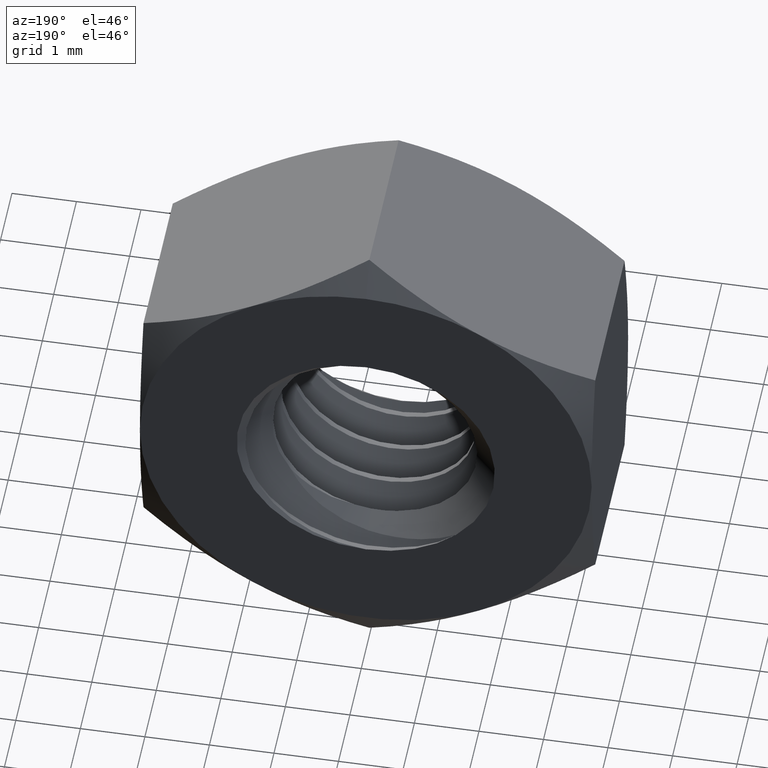
[diagram: clean part render]
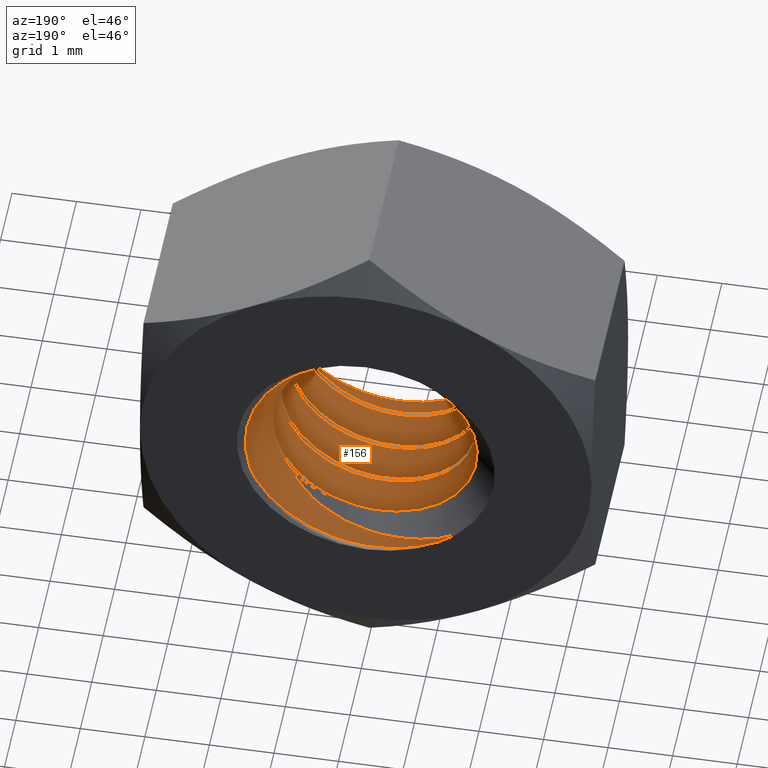
[diagram: same view with one face highlighted and labeled with its STEP entity id]
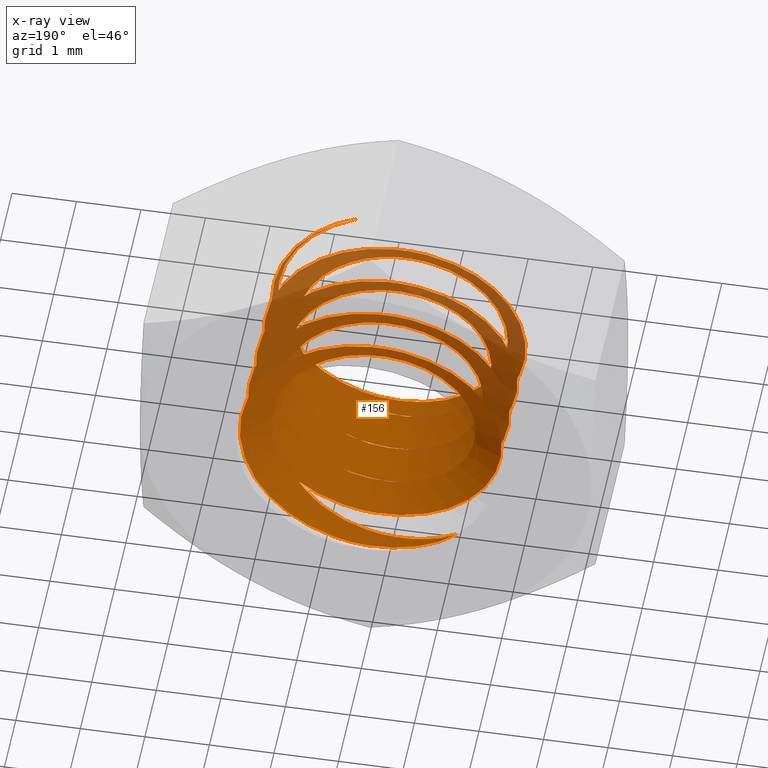
[diagram: x-ray of the same camera — body ghosted, the highlighted face saturated]
A machine part, auxiliary view. The second image highlights one B-rep face of the part: STEP entity #156.
The next image is the same camera in x-ray: the body ghosted, the highlighted face saturated — about 30% of this face is hidden behind the body in this view.
In plain terms, the highlighted face is a freeform B-spline surface patch.
Its self-contained STEP definition (entity closure, byte-faithful):
#13 = CARTESIAN_POINT ( 'NONE',  ( -1.732050807568876700, 0.3458333333333316600, 1.000000000000000900 ) ) ;
#15 = CARTESIAN_POINT ( 'NONE',  ( 2.449293598294706400E-016, 0.4624999999999983000, 2.000000000000000000 ) ) ;
#22 = EDGE_CURVE ( 'NONE', #1861, #1900, #547, .T. ) ;
#28 = CARTESIAN_POINT ( 'NONE',  ( -1.732050807568878100, -0.4708333333333348200, -0.9999999999999985600 ) ) ;
#33 = CARTESIAN_POINT ( 'NONE',  ( 2.309401076758502900, 0.6374999999999984000, -1.414100318299875600E-016 ) ) ;
#34 = CARTESIAN_POINT ( 'NONE',  ( 1.732050807568877400, 1.279166666666665000, 0.9999999999999995600 ) ) ;
#43 = CARTESIAN_POINT ( 'NONE',  ( 1.154700538379252600, 1.220833333333331700, 1.999999999999999600 ) ) ;
#51 = CARTESIAN_POINT ( 'NONE',  ( -0.8456489047310611400, -1.367092041338759300, -1.567173218970678000 ) ) ;
#63 = CARTESIAN_POINT ( 'NONE',  ( -1.732050807568876700, 1.045833333333331800, 1.000000000000000900 ) ) ;
#67 = CARTESIAN_POINT ( 'NONE',  ( -1.471311687071638700, -1.331070582185945200, -0.9383005253973739600 ) ) ;
#73 = CARTESIAN_POINT ( 'NONE',  ( -1.610967889283662500, -1.270734939520265600, 0.4566371365956172200 ) ) ;
#78 = CARTESIAN_POINT ( 'NONE',  ( 1.154700538379252100, 1.220833333333331700, 1.999999999999999800 ) ) ;
#81 = CARTESIAN_POINT ( 'NONE',  ( -0.4358873428878464200, -1.385207578127642500, -1.734720145296925600 ) ) ;
#84 = CARTESIAN_POINT ( 'NONE',  ( -1.784401076758501200, 0.7249999999999986500, 3.277891600571083500E-016 ) ) ;
#86 = VERTEX_POINT ( 'NONE', #153 ) ;
#87 = B_SPLINE_CURVE_WITH_KNOTS ( 'NONE', 3,
 ( #223, #1762, #388, #81, #1305, #51, #974, #1297, #67, #1151, #835, #366, #214, #1619, #1935, #1135, #73, #1446, #382, #1599, #1000, #1159, #1912, #828, #1311, #1165 ),
 .UNSPECIFIED., .F., .F.,
 ( 4, 2, 2, 2, 2, 2, 2, 2, 2, 2, 2, 2, 4 ),
 ( 0.005312518444250118000, 0.005644026906692766800, 0.005975535369135415500, 0.006638552294020712100, 0.007301569218906008700, 0.007633077681348658300, 0.007964586143791306200, 0.008296094606233955800, 0.008627603068676603600, 0.009290619993561901100, 0.009622128456004550700, 0.009953636918447198600, 0.01061665384333249600 ),
 .UNSPECIFIED. ) ;
#104 = CARTESIAN_POINT ( 'NONE',  ( 0.8922005383792505100, 1.191666666666665300, -1.545336663013168200 ) ) ;
#110 = CARTESIAN_POINT ( 'NONE',  ( -1.732050807568878100, 0.2291666666666648500, -0.9999999999999985600 ) ) ;
#114 = CARTESIAN_POINT ( 'NONE',  ( 2.449293598294706400E-016, -0.2375000000000016000, 2.000000000000000000 ) ) ;
#122 = CARTESIAN_POINT ( 'NONE',  ( 1.154700538379252100, -0.1791666666666681700, 1.999999999999999800 ) ) ;
#125 = CARTESIAN_POINT ( 'NONE',  ( 0.8922005383792505100, 1.891666666666665300, -1.545336663013168200 ) ) ;
#134 = CARTESIAN_POINT ( 'NONE',  ( 0.8922005383792510600, 0.2583333333333320300, 1.545336663013167700 ) ) ;
#140 = CARTESIAN_POINT ( 'NONE',  ( -1.338300807568875600, -0.6166666666666681400, 0.7726683315065847600 ) ) ;
#142 = CARTESIAN_POINT ( 'NONE',  ( 0.0000000000000000000, -0.5875000000000016900, -2.000000000000000000 ) ) ;
#147 = CARTESIAN_POINT ( 'NONE',  ( 0.0000000000000000000, -0.8500000000000013100, -1.545336663013168200 ) ) ;
#150 = CARTESIAN_POINT ( 'NONE',  ( 1.338300807568875800, -0.9666666666666682300, -0.7726683315065843200 ) ) ;
#153 = CARTESIAN_POINT ( 'NONE',  ( 2.449293598294706400E-016, -0.9375000000000016700, 2.000000000000000000 ) ) ;
#156 = ADVANCED_FACE ( 'NONE', ( #477 ), #1292, .T. ) ;
#157 = CARTESIAN_POINT ( 'NONE',  ( 1.762171996019109300, -1.486115103350378300, -0.6814345904909149300 ) ) ;
#160 =( BOUNDED_CURVE ( )  B_SPLINE_CURVE ( 2, ( #339, #481, #492 ),
 .UNSPECIFIED., .F., .F. ) 
 B_SPLINE_CURVE_WITH_KNOTS ( ( 3, 3 ),
 ( 0.7619496857609308100, 0.7824223608352338700 ),
 .UNSPECIFIED. ) 
 CURVE ( )  GEOMETRIC_REPRESENTATION_ITEM ( )  RATIONAL_B_SPLINE_CURVE ( ( 1.000000000000000000, 0.9012585384448430500, 0.9480652107218832100 ) ) 
 REPRESENTATION_ITEM ( '' )  );
#165 = CARTESIAN_POINT ( 'NONE',  ( 1.923875890384484600, -1.511375892679774200, -0.03852936082774155400 ) ) ;
#172 = CARTESIAN_POINT ( 'NONE',  ( 2.702824631663522100E-011, -1.401882938683599100, -1.801882938683598400 ) ) ;
#195 =( BOUNDED_CURVE ( )  B_SPLINE_CURVE ( 2, ( #647, #1723, #1887, #955, #1903, #806, #1122 ),
 .UNSPECIFIED., .F., .T. ) 
 B_SPLINE_CURVE_WITH_KNOTS ( ( 3, 2, 2, 3 ),
 ( 0.5952830190942641800, 0.6230607968720418600, 0.6508385746498196500, 0.6786163524275974400 ),
 .UNSPECIFIED. ) 
 CURVE ( )  GEOMETRIC_REPRESENTATION_ITEM ( )  RATIONAL_B_SPLINE_CURVE ( ( 1.000000000000000000, 0.8660254037844387100, 1.000000000000000000, 0.8660254037844387100, 1.000000000000000000, 0.8660254037844387100, 1.000000000000000000 ) ) 
 REPRESENTATION_ITEM ( '' )  );
#199 = CARTESIAN_POINT ( 'NONE',  ( 1.732050807568877400, -0.1208333333333347600, 0.9999999999999995600 ) ) ;
#208 = CARTESIAN_POINT ( 'NONE',  ( -1.732050807568878100, 0.2291666666666648500, -0.9999999999999985600 ) ) ;
#210 = CARTESIAN_POINT ( 'NONE',  ( -1.154700538379252600, -1.229166666666668300, -1.999999999999999300 ) ) ;
#211 = CARTESIAN_POINT ( 'NONE',  ( 2.309401076758502900, -0.06250000000000179000, -1.414100318299875600E-016 ) ) ;
#214 = CARTESIAN_POINT ( 'NONE',  ( -1.691473631232532700, -1.299647340480681200, -0.1998365539274595800 ) ) ;
#221 = ORIENTED_EDGE ( 'NONE', *, *, #819, .F. ) ;
#223 = CARTESIAN_POINT ( 'NONE',  ( 2.702824631663522100E-011, -1.401882938683599100, -1.801882938683598400 ) ) ;
#226 = CARTESIAN_POINT ( 'NONE',  ( -1.732050807568876700, 0.3458333333333316600, 1.000000000000000900 ) ) ;
#232 = CARTESIAN_POINT ( 'NONE',  ( 2.309401076758502900, 2.037499999999998300, -1.414100318299875800E-016 ) ) ;
#240 = CARTESIAN_POINT ( 'NONE',  ( 0.0000000000000000000, 0.8124999999999983300, -2.000000000000000000 ) ) ;
#249 = CARTESIAN_POINT ( 'NONE',  ( -1.154700538379250600, 1.104166666666665000, 2.000000000000000400 ) ) ;
#256 = CARTESIAN_POINT ( 'NONE',  ( -1.338300807568875600, 0.7833333333333321000, 0.7726683315065847600 ) ) ;
#264 = CARTESIAN_POINT ( 'NONE',  ( -1.154700538379250600, -0.9958333333333351200, 2.000000000000000400 ) ) ;
#269 = CARTESIAN_POINT ( 'NONE',  ( -1.154700538379252800, -1.229166666666668300, -1.999999999999999300 ) ) ;
#275 = CARTESIAN_POINT ( 'NONE',  ( -2.309401076758502900, -1.112500000000001600, 4.242300954899627700E-016 ) ) ;
#277 = ORIENTED_EDGE ( 'NONE', *, *, #1279, .T. ) ;
#281 = CARTESIAN_POINT ( 'NONE',  ( -1.732050807568876700, -0.3541666666666684100, 1.000000000000000900 ) ) ;
#287 = CARTESIAN_POINT ( 'NONE',  ( -0.8922005383792500600, 0.1416666666666653900, 1.545336663013168600 ) ) ;
#292 = CARTESIAN_POINT ( 'NONE',  ( -1.784401076758501200, -0.6750000000000017100, 3.277891600571083500E-016 ) ) ;
#295 = CARTESIAN_POINT ( 'NONE',  ( 1.338300807568876000, -1.083333333333334600, 0.7726683315065837600 ) ) ;
#298 = CARTESIAN_POINT ( 'NONE',  ( -0.8922005383792515100, -0.7916666666666679600, -1.545336663013167700 ) ) ;
#302 =( BOUNDED_CURVE ( )  B_SPLINE_CURVE ( 2, ( #928, #318, #208, #975, #13, #1904, #362 ),
 .UNSPECIFIED., .F., .F. ) 
 B_SPLINE_CURVE_WITH_KNOTS ( ( 3, 2, 2, 3 ),
 ( 0.4286163524275974400, 0.4563941302053752300, 0.4841719079831530200, 0.5119496857609307000 ),
 .UNSPECIFIED. ) 
 CURVE ( )  GEOMETRIC_REPRESENTATION_ITEM ( )  RATIONAL_B_SPLINE_CURVE ( ( 1.000000000000000000, 0.8660254037844387100, 1.000000000000000000, 0.8660254037844387100, 1.000000000000000000, 0.8660254037844387100, 1.000000000000000000 ) ) 
 REPRESENTATION_ITEM ( '' )  );
#308 = CARTESIAN_POINT ( 'NONE',  ( 1.408569341429479300, -1.567110777453623000, 1.391005191545977300 ) ) ;
#313 = CARTESIAN_POINT ( 'NONE',  ( 1.338300807568876000, -1.083333333333334600, 0.7726683315065837600 ) ) ;
#314 = CARTESIAN_POINT ( 'NONE',  ( 1.318377194814434900, -1.458167330964024400, -1.314140348204302600 ) ) ;
#318 = CARTESIAN_POINT ( 'NONE',  ( -1.154700538379252600, 0.1708333333333318400, -1.999999999999999300 ) ) ;
#339 = CARTESIAN_POINT ( 'NONE',  ( 0.0000000000000000000, 1.512499999999998200, -2.000000000000000000 ) ) ;
#341 = CARTESIAN_POINT ( 'NONE',  ( 0.6190967197439939400, -1.151525427696187000, 1.428525889910280200 ) ) ;
#350 = CARTESIAN_POINT ( 'NONE',  ( 0.8347289278728615700, 1.254243339005551200, -1.434012445829154300 ) ) ;
#353 = VERTEX_POINT ( 'NONE', #644 ) ;
#362 = CARTESIAN_POINT ( 'NONE',  ( 2.449293598294706400E-016, 0.4624999999999983000, 2.000000000000000000 ) ) ;
#366 = CARTESIAN_POINT ( 'NONE',  ( -1.679711172895123900, -1.304378727393498100, -0.3094425810259344700 ) ) ;
#368 = CARTESIAN_POINT ( 'NONE',  ( 0.0000000000000000000, -1.287500000000001600, -2.000000000000000000 ) ) ;
#369 = CARTESIAN_POINT ( 'NONE',  ( 2.449293598294706400E-016, -0.9375000000000016700, 2.000000000000000000 ) ) ;
#372 = ORIENTED_EDGE ( 'NONE', *, *, #1180, .T. ) ;
#374 = CARTESIAN_POINT ( 'NONE',  ( 1.240589571770435800, 1.145336663012057800, -0.9214135425893854600 ) ) ;
#379 = CARTESIAN_POINT ( 'NONE',  ( 1.154700538379252100, 1.920833333333331600, 1.999999999999999800 ) ) ;
#382 = CARTESIAN_POINT ( 'NONE',  ( -1.362750607133382100, -1.248575438554325300, 0.9541008930076518800 ) ) ;
#386 = CARTESIAN_POINT ( 'NONE',  ( 1.732050807568877400, 1.279166666666665000, 0.9999999999999995600 ) ) ;
#387 = ORIENTED_EDGE ( 'NONE', *, *, #22, .T. ) ;
#388 = CARTESIAN_POINT ( 'NONE',  ( -0.2195369231801547200, -1.393847214676774000, -1.783809695608997500 ) ) ;
#389 = B_SPLINE_CURVE_WITH_KNOTS ( 'NONE', 3,
 ( #374, #993, #1764, #801, #350, #970, #668, #1899, #642, #1570 ),
 .UNSPECIFIED., .F., .F.,
 ( 4, 2, 2, 2, 4 ),
 ( 0.0000000000000000000, 0.0003971530660516413400, 0.0007943061321032825700, 0.001191459198154923600, 0.001588612264206564700 ),
 .UNSPECIFIED. ) ;
#390 = CARTESIAN_POINT ( 'NONE',  ( 1.784401076758501200, 0.3749999999999986100, -1.092630533523694600E-016 ) ) ;
#392 = CARTESIAN_POINT ( 'NONE',  ( 1.732050807568877400, 0.5791666666666649400, 0.9999999999999995600 ) ) ;
#397 = CARTESIAN_POINT ( 'NONE',  ( 0.0000000000000000000, 2.212499999999998100, -2.000000000000000000 ) ) ;
#405 = CARTESIAN_POINT ( 'NONE',  ( 1.732050807568877200, 2.095833333333331400, -1.000000000000000200 ) ) ;
#412 = CARTESIAN_POINT ( 'NONE',  ( -1.784401076758501200, 0.7249999999999985300, 3.277891600571083500E-016 ) ) ;
#417 = CARTESIAN_POINT ( 'NONE',  ( -1.154700538379250600, -0.2958333333333350600, 2.000000000000000400 ) ) ;
#423 = CARTESIAN_POINT ( 'NONE',  ( 2.309401076758502900, -1.462500000000001700, -1.414100318299875800E-016 ) ) ;
#427 = CARTESIAN_POINT ( 'NONE',  ( 1.154700538379251200, -1.345833333333335200, -2.000000000000000000 ) ) ;
#434 = CARTESIAN_POINT ( 'NONE',  ( 0.8922005383792510600, 1.658333333333331900, 1.545336663013167700 ) ) ;
#439 = CARTESIAN_POINT ( 'NONE',  ( 1.892491597964128500E-016, 0.1999999999999985700, 1.545336663013168200 ) ) ;
#440 = ORIENTED_EDGE ( 'NONE', *, *, #1630, .T. ) ;
#446 = CARTESIAN_POINT ( 'NONE',  ( -1.338300807568876700, -0.03333333333333486600, -0.7726683315065830900 ) ) ;
#448 = CARTESIAN_POINT ( 'NONE',  ( -1.338300807568876700, -0.7333333333333345000, -0.7726683315065830900 ) ) ;
#452 = CARTESIAN_POINT ( 'NONE',  ( 0.8922005383792505100, -1.608333333333334700, -1.545336663013168200 ) ) ;
#461 = CARTESIAN_POINT ( 'NONE',  ( 1.338300807568876000, -0.3833333333333344700, 0.7726683315065837600 ) ) ;
#469 = CARTESIAN_POINT ( 'NONE',  ( 0.1104682635419877200, -1.405809932624737700, -1.805809932622995900 ) ) ;
#473 = CARTESIAN_POINT ( 'NONE',  ( -1.338300807568875600, 0.08333333333333195500, 0.7726683315065847600 ) ) ;
#477 = FACE_OUTER_BOUND ( 'NONE', #637, .T. ) ;
#480 = VERTEX_POINT ( 'NONE', #1751 ) ;
#481 = CARTESIAN_POINT ( 'NONE',  ( -0.8177634621322547000, 1.553811896062104300, -1.999999999999999600 ) ) ;
#482 = CARTESIAN_POINT ( 'NONE',  ( 0.0000000000000000000, 0.8124999999999983300, -2.000000000000000000 ) ) ;
#488 = VERTEX_POINT ( 'NONE', #1744 ) ;
#492 = CARTESIAN_POINT ( 'NONE',  ( -1.401258538444098300, 1.600000000000000100, -1.427050983124818600 ) ) ;
#495 = CARTESIAN_POINT ( 'NONE',  ( 0.0000000000000000000, 0.8124999999999983300, -2.000000000000000000 ) ) ;
#501 = CARTESIAN_POINT ( 'NONE',  ( 2.449293598294706400E-016, 1.162499999999998300, 2.000000000000000000 ) ) ;
#511 = CARTESIAN_POINT ( 'NONE',  ( -1.201564485198708200, 1.566937907896577700, -1.576799531359423200 ) ) ;
#512 = EDGE_CURVE ( 'NONE', #353, #480, #1991, .T. ) ;
#527 = CARTESIAN_POINT ( 'NONE',  ( -2.309401076758502900, 0.2874999999999983100, 4.242300954899627700E-016 ) ) ;
#535 = ORIENTED_EDGE ( 'NONE', *, *, #512, .T. ) ;
#539 = ORIENTED_EDGE ( 'NONE', *, *, #1951, .F. ) ;
#547 =( BOUNDED_CURVE ( )  B_SPLINE_CURVE ( 2, ( #501, #43, #34, #653, #1897, #963, #1283 ),
 .UNSPECIFIED., .F., .F. ) 
 B_SPLINE_CURVE_WITH_KNOTS ( ( 3, 2, 2, 3 ),
 ( 0.6786163524275974400, 0.7063941302053752300, 0.7341719079831530200, 0.7619496857609308100 ),
 .UNSPECIFIED. ) 
 CURVE ( )  GEOMETRIC_REPRESENTATION_ITEM ( )  RATIONAL_B_SPLINE_CURVE ( ( 1.000000000000000000, 0.8660254037844387100, 1.000000000000000000, 0.8660254037844387100, 1.000000000000000000, 0.8660254037844387100, 1.000000000000000000 ) ) 
 REPRESENTATION_ITEM ( '' )  );
#549 = CARTESIAN_POINT ( 'NONE',  ( 1.732050807568877200, 1.395833333333331700, -1.000000000000000200 ) ) ;
#556 = CARTESIAN_POINT ( 'NONE',  ( 2.309401076758502900, 0.6374999999999984000, -1.414100318299875800E-016 ) ) ;
#558 = CARTESIAN_POINT ( 'NONE',  ( 1.338300807568876000, 1.016666666666665300, 0.7726683315065837600 ) ) ;
#561 = CARTESIAN_POINT ( 'NONE',  ( 1.732050807568877400, -0.8208333333333348600, 0.9999999999999995600 ) ) ;
#566 = CARTESIAN_POINT ( 'NONE',  ( 1.338300807568875800, 0.4333333333333320200, -0.7726683315065843200 ) ) ;
#567 = CARTESIAN_POINT ( 'NONE',  ( -1.154700538379252800, -0.5291666666666682300, -1.999999999999999300 ) ) ;
#572 =( BOUNDED_CURVE ( )  B_SPLINE_CURVE ( 2, ( #15, #1416, #957, #33, #1710, #1569, #482 ),
 .UNSPECIFIED., .F., .T. ) 
 B_SPLINE_CURVE_WITH_KNOTS ( ( 3, 2, 2, 3 ),
 ( 0.5119496857609307000, 0.5397274635387086000, 0.5675052413164862800, 0.5952830190942641800 ),
 .UNSPECIFIED. ) 
 CURVE ( )  GEOMETRIC_REPRESENTATION_ITEM ( )  RATIONAL_B_SPLINE_CURVE ( ( 1.000000000000000000, 0.8660254037844387100, 1.000000000000000000, 0.8660254037844387100, 1.000000000000000000, 0.8660254037844387100, 1.000000000000000000 ) ) 
 REPRESENTATION_ITEM ( '' )  );
#575 = CARTESIAN_POINT ( 'NONE',  ( 1.732050807568877400, -0.1208333333333347600, 0.9999999999999995600 ) ) ;
#581 = CARTESIAN_POINT ( 'NONE',  ( 1.154700538379251200, 0.05416666666666503800, -2.000000000000000000 ) ) ;
#583 = CARTESIAN_POINT ( 'NONE',  ( 1.784401076758501200, -1.025000000000001200, -1.092630533523694600E-016 ) ) ;
#588 = CARTESIAN_POINT ( 'NONE',  ( 1.732050807568877200, -1.404166666666668100, -1.000000000000000200 ) ) ;
#593 = CARTESIAN_POINT ( 'NONE',  ( -1.338300807568875600, 0.08333333333333195500, 0.7726683315065847600 ) ) ;
#596 = CARTESIAN_POINT ( 'NONE',  ( -0.8922005383792500600, -1.258333333333334900, 1.545336663013168600 ) ) ;
#599 = CARTESIAN_POINT ( 'NONE',  ( 1.847081879561766100, -1.536669204482387500, 0.6233043337955712600 ) ) ;
#600 = CARTESIAN_POINT ( 'NONE',  ( -0.6705119947324951200, -1.949616121373110500, 1.392292737527753400 ) ) ;
#603 = CARTESIAN_POINT ( 'NONE',  ( 1.892491597964128500E-016, 0.1999999999999985700, 1.545336663013168200 ) ) ;
#605 = CARTESIAN_POINT ( 'NONE',  ( 1.146960443873393600, -1.449501643726270900, -1.455141066377848600 ) ) ;
#613 = CARTESIAN_POINT ( 'NONE',  ( 0.8625202847289518100, -1.436239354623394900, -1.624821009958207900 ) ) ;
#619 = CARTESIAN_POINT ( 'NONE',  ( 1.338300807568875800, -0.9666666666666682300, -0.7726683315065843200 ) ) ;
#637 = EDGE_LOOP ( 'NONE', ( #1494, #1675, #372, #1359, #440, #535, #1714, #1999, #969, #387, #796, #539, #1718, #277, #221, #789 ) ) ;
#641 = EDGE_CURVE ( 'NONE', #480, #1509, #302, .T. ) ;
#642 = CARTESIAN_POINT ( 'NONE',  ( 0.1308850634320606900, 1.375522062533003100, -1.775522062532993900 ) ) ;
#644 = CARTESIAN_POINT ( 'NONE',  ( 2.449293598294706400E-016, -0.2375000000000016000, 2.000000000000000000 ) ) ;
#647 = CARTESIAN_POINT ( 'NONE',  ( 0.0000000000000000000, 0.8124999999999983300, -2.000000000000000000 ) ) ;
#653 = CARTESIAN_POINT ( 'NONE',  ( 2.309401076758502900, 1.337499999999998600, -1.414100318299875600E-016 ) ) ;
#656 = CARTESIAN_POINT ( 'NONE',  ( -2.309401076758502900, -0.4125000000000018700, 4.242300954899627700E-016 ) ) ;
#668 = CARTESIAN_POINT ( 'NONE',  ( 0.5039011481065134300, 1.317402120442132200, -1.646995257236739500 ) ) ;
#669 = CARTESIAN_POINT ( 'NONE',  ( -0.9770504341224568500, 1.532170099666142700, -1.684888192935928300 ) ) ;
#672 = CARTESIAN_POINT ( 'NONE',  ( 0.0000000000000000000, -1.287500000000001600, -2.000000000000000000 ) ) ;
#680 = CARTESIAN_POINT ( 'NONE',  ( -1.154700538379252800, 1.570833333333331500, -1.999999999999999300 ) ) ;
#694 = CARTESIAN_POINT ( 'NONE',  ( 1.338300807568876000, 0.3166666666666652100, 0.7726683315065837600 ) ) ;
#696 =( BOUNDED_CURVE ( )  B_SPLINE_CURVE ( 2, ( #962, #1427, #28, #656, #1738, #1722, #1894 ),
 .UNSPECIFIED., .F., .T. ) 
 B_SPLINE_CURVE_WITH_KNOTS ( ( 3, 2, 2, 3 ),
 ( 0.2619496857609308100, 0.2897274635387086000, 0.3175052413164862800, 0.3452830190942640700 ),
 .UNSPECIFIED. ) 
 CURVE ( )  GEOMETRIC_REPRESENTATION_ITEM ( )  RATIONAL_B_SPLINE_CURVE ( ( 1.000000000000000000, 0.8660254037844387100, 1.000000000000000000, 0.8660254037844387100, 1.000000000000000000, 0.8660254037844387100, 1.000000000000000000 ) ) 
 REPRESENTATION_ITEM ( '' )  );
#707 = CARTESIAN_POINT ( 'NONE',  ( 1.293734851998331600, 1.139160903772456800, -0.8498588308426243700 ) ) ;
#710 = CARTESIAN_POINT ( 'NONE',  ( 1.154700538379252100, 0.5208333333333317100, 1.999999999999999800 ) ) ;
#716 = CARTESIAN_POINT ( 'NONE',  ( 0.0000000000000000000, -0.5875000000000016900, -2.000000000000000000 ) ) ;
#721 = CARTESIAN_POINT ( 'NONE',  ( 2.449293598294706400E-016, -0.9375000000000016700, 2.000000000000000000 ) ) ;
#724 = CARTESIAN_POINT ( 'NONE',  ( -1.732050807568876700, -1.054166666666668500, 1.000000000000000900 ) ) ;
#729 = CARTESIAN_POINT ( 'NONE',  ( 1.784401076758501200, 0.3749999999999985600, -1.092630533523694600E-016 ) ) ;
#736 = CARTESIAN_POINT ( 'NONE',  ( 1.154700538379252100, -0.8791666666666682100, 1.999999999999999800 ) ) ;
#742 = CARTESIAN_POINT ( 'NONE',  ( -1.338300807568875600, 1.483333333333331800, 0.7726683315065847600 ) ) ;
#744 = CARTESIAN_POINT ( 'NONE',  ( 1.338300807568875800, -1.666666666666667900, -0.7726683315065843200 ) ) ;
#749 = CARTESIAN_POINT ( 'NONE',  ( -1.784401076758501200, 0.02499999999999854800, 3.277891600571083500E-016 ) ) ;
#757 = CARTESIAN_POINT ( 'NONE',  ( 1.714892357579102400, -1.482052313348427400, -0.7833207498789975800 ) ) ;
#761 = EDGE_CURVE ( 'NONE', #488, #1070, #389, .T. ) ;
#762 = CARTESIAN_POINT ( 'NONE',  ( 0.8922005383792505100, -0.9083333333333347700, -1.545336663013168200 ) ) ;
#789 = ORIENTED_EDGE ( 'NONE', *, *, #1426, .F. ) ;
#792 = CARTESIAN_POINT ( 'NONE',  ( 2.449293598294706400E-016, 1.162499999999998300, 2.000000000000000000 ) ) ;
#796 = ORIENTED_EDGE ( 'NONE', *, *, #1385, .T. ) ;
#801 = CARTESIAN_POINT ( 'NONE',  ( 0.9341288875677786800, 1.232129156553851500, -1.344583498068797800 ) ) ;
#806 = CARTESIAN_POINT ( 'NONE',  ( -1.154700538379250800, 1.104166666666665000, 2.000000000000000400 ) ) ;
#811 = CARTESIAN_POINT ( 'NONE',  ( 0.0000000000000000000, -1.287500000000001600, -2.000000000000000000 ) ) ;
#814 = CARTESIAN_POINT ( 'NONE',  ( 1.732050807568877200, -0.004166666666668376200, -1.000000000000000200 ) ) ;
#816 = CARTESIAN_POINT ( 'NONE',  ( 2.449293598294706400E-016, 0.4624999999999983000, 2.000000000000000000 ) ) ;
#819 = EDGE_CURVE ( 'NONE', #1941, #1992, #842, .T. ) ;
#828 = CARTESIAN_POINT ( 'NONE',  ( -0.4448481570461398900, -1.198970144725038000, 1.551671939033365100 ) ) ;
#835 = CARTESIAN_POINT ( 'NONE',  ( -1.634524272385623900, -1.313678197169066500, -0.5265936339760373100 ) ) ;
#837 = CARTESIAN_POINT ( 'NONE',  ( -1.732050807568878100, 0.9291666666666649200, -0.9999999999999985600 ) ) ;
#842 = B_SPLINE_CURVE_WITH_KNOTS ( 'NONE', 3,
 ( #1276, #1266, #1726, #1750, #341, #1907 ),
 .UNSPECIFIED., .F., .F.,
 ( 4, 2, 4 ),
 ( 0.01061665384333249600, 0.01100000633635757900, 0.01138335882938266100 ),
 .UNSPECIFIED. ) ;
#843 = CARTESIAN_POINT ( 'NONE',  ( 0.8922005383792511700, 0.2583333333333319700, 1.545336663013167700 ) ) ;
#852 = CARTESIAN_POINT ( 'NONE',  ( 2.449293598294706400E-016, 1.162499999999998300, 2.000000000000000000 ) ) ;
#859 = CARTESIAN_POINT ( 'NONE',  ( 1.154700538379251200, 1.454166666666665100, -2.000000000000000000 ) ) ;
#863 = CARTESIAN_POINT ( 'NONE',  ( -1.338300807568876700, 0.6666666666666651900, -0.7726683315065830900 ) ) ;
#865 = CARTESIAN_POINT ( 'NONE',  ( 1.784401076758501200, 1.074999999999998600, -1.092630533523694600E-016 ) ) ;
#870 = CARTESIAN_POINT ( 'NONE',  ( 0.0000000000000000000, 0.5499999999999986000, -1.545336663013168200 ) ) ;
#874 = CARTESIAN_POINT ( 'NONE',  ( 1.338300807568876000, 0.3166666666666652100, 0.7726683315065837600 ) ) ;
#881 = CARTESIAN_POINT ( 'NONE',  ( -0.4564986955870130000, -1.660561468918415400, 2.000000000000000000 ) ) ;
#889 = CARTESIAN_POINT ( 'NONE',  ( -1.784401076758501200, 1.424999999999998500, 3.277891600571083500E-016 ) ) ;
#898 = CARTESIAN_POINT ( 'NONE',  ( 0.8922005383792510600, -0.4416666666666679300, 1.545336663013167700 ) ) ;
#906 = CARTESIAN_POINT ( 'NONE',  ( 0.8922005383792505100, -0.2083333333333346700, -1.545336663013168200 ) ) ;
#908 = CARTESIAN_POINT ( 'NONE',  ( 0.4423327987917686800, -1.418513484288763900, -1.767370562619032800 ) ) ;
#909 = CARTESIAN_POINT ( 'NONE',  ( 1.784401076758501200, -1.725000000000001200, -1.092630533523694600E-016 ) ) ;
#914 = CARTESIAN_POINT ( 'NONE',  ( 1.837432933166562200, -1.494336507862107800, -0.4738397226058785300 ) ) ;
#915 = CARTESIAN_POINT ( 'NONE',  ( -1.338300807568875600, -1.316666666666668200, 0.7726683315065847600 ) ) ;
#925 = EDGE_CURVE ( 'NONE', #86, #1761, #1331, .T. ) ;
#928 = CARTESIAN_POINT ( 'NONE',  ( 0.0000000000000000000, 0.1124999999999984500, -2.000000000000000000 ) ) ;
#930 = CARTESIAN_POINT ( 'NONE',  ( 0.2230256412782290200, -1.409997786016417900, -1.799615866421493800 ) ) ;
#941 = CARTESIAN_POINT ( 'NONE',  ( 0.0000000000000000000, 1.512499999999998200, -2.000000000000000000 ) ) ;
#955 = CARTESIAN_POINT ( 'NONE',  ( -2.309401076758502900, 0.9874999999999983800, 4.242300954899627700E-016 ) ) ;
#957 = CARTESIAN_POINT ( 'NONE',  ( 1.732050807568877400, 0.5791666666666649400, 0.9999999999999995600 ) ) ;
#962 = CARTESIAN_POINT ( 'NONE',  ( 0.0000000000000000000, -0.5875000000000016900, -2.000000000000000000 ) ) ;
#963 = CARTESIAN_POINT ( 'NONE',  ( 1.154700538379251200, 1.454166666666665100, -2.000000000000000000 ) ) ;
#965 = CARTESIAN_POINT ( 'NONE',  ( 1.154700538379252600, -0.1791666666666681700, 1.999999999999999600 ) ) ;
#968 = CARTESIAN_POINT ( 'NONE',  ( 2.309401076758502900, -1.462500000000001500, -1.414100318299875600E-016 ) ) ;
#969 = ORIENTED_EDGE ( 'NONE', *, *, #1409, .T. ) ;
#970 = CARTESIAN_POINT ( 'NONE',  ( 0.6207361378223369400, 1.296635425809613100, -1.584266855201493800 ) ) ;
#971 = CARTESIAN_POINT ( 'NONE',  ( -1.989179162403359900E-011, -1.179991830007998100, 1.579991830007996500 ) ) ;
#974 = CARTESIAN_POINT ( 'NONE',  ( -1.032967578227277600, -1.357579317373400500, -1.438949986964714200 ) ) ;
#975 = CARTESIAN_POINT ( 'NONE',  ( -2.309401076758502900, 0.2874999999999982600, 4.242300954899627700E-016 ) ) ;
#982 = CARTESIAN_POINT ( 'NONE',  ( -0.4973991944294360300, 1.461310699957122800, -1.810322082565897000 ) ) ;
#988 = CARTESIAN_POINT ( 'NONE',  ( 1.732050807568877400, -0.8208333333333348600, 0.9999999999999995600 ) ) ;
#993 = CARTESIAN_POINT ( 'NONE',  ( 1.179804237063025700, 1.166782979807221800, -1.039223219746808100 ) ) ;
#1000 = CARTESIAN_POINT ( 'NONE',  ( -1.039781795888052400, -1.229285697016316600, 1.259208616438949800 ) ) ;
#1005 = CARTESIAN_POINT ( 'NONE',  ( 1.732050807568877400, 1.979166666666665200, 0.9999999999999995600 ) ) ;
#1014 = CARTESIAN_POINT ( 'NONE',  ( 1.154700538379251200, -0.6458333333333350400, -2.000000000000000000 ) ) ;
#1023 = CARTESIAN_POINT ( 'NONE',  ( -0.8922005383792515100, 1.308333333333332000, -1.545336663013167700 ) ) ;
#1026 = CARTESIAN_POINT ( 'NONE',  ( 0.0000000000000000000, 1.392972777168858000, -1.792972777168857700 ) ) ;
#1028 = CARTESIAN_POINT ( 'NONE',  ( 0.0000000000000000000, 1.249999999999998400, -1.545336663013168200 ) ) ;
#1035 = CARTESIAN_POINT ( 'NONE',  ( 2.309401076758502900, -0.06250000000000179000, -1.414100318299875800E-016 ) ) ;
#1038 = CARTESIAN_POINT ( 'NONE',  ( -1.154700538379252800, 0.1708333333333318400, -1.999999999999999300 ) ) ;
#1047 = CARTESIAN_POINT ( 'NONE',  ( -1.732050807568878100, -1.170833333333334900, -0.9999999999999985600 ) ) ;
#1049 = CARTESIAN_POINT ( 'NONE',  ( 0.8922005383792505100, -0.9083333333333347700, -1.545336663013168200 ) ) ;
#1054 = CARTESIAN_POINT ( 'NONE',  ( 0.0000000000000000000, -0.8500000000000013100, -1.545336663013168200 ) ) ;
#1058 = CARTESIAN_POINT ( 'NONE',  ( 0.8922005383792510600, -1.841666666666668100, 1.545336663013167700 ) ) ;
#1063 = CARTESIAN_POINT ( 'NONE',  ( 1.892491597964128500E-016, -0.5000000000000013300, 1.545336663013168200 ) ) ;
#1070 = VERTEX_POINT ( 'NONE', #1026 ) ;
#1079 = CARTESIAN_POINT ( 'NONE',  ( 0.8922005383792510600, -1.141666666666667900, 1.545336663013167700 ) ) ;
#1084 = CARTESIAN_POINT ( 'NONE',  ( -1.784401076758501200, -0.6750000000000014900, 3.277891600571083500E-016 ) ) ;
#1087 = CARTESIAN_POINT ( 'NONE',  ( 1.771104783052898100, -1.544306144267500300, 0.8324663366396032300 ) ) ;
#1096 = CARTESIAN_POINT ( 'NONE',  ( -0.8922005383792501700, 0.1416666666666653900, 1.545336663013168600 ) ) ;
#1099 = EDGE_CURVE ( 'NONE', #1251, #1410, #1172, .T. ) ;
#1122 = CARTESIAN_POINT ( 'NONE',  ( 2.449293598294706400E-016, 1.162499999999998300, 2.000000000000000000 ) ) ;
#1135 = CARTESIAN_POINT ( 'NONE',  ( -1.642058499885375600, -1.275467943318563800, 0.3507350030671598200 ) ) ;
#1137 = CARTESIAN_POINT ( 'NONE',  ( 1.732050807568877200, -1.404166666666668100, -1.000000000000000200 ) ) ;
#1139 = CARTESIAN_POINT ( 'NONE',  ( -1.401258538444098300, 1.600000000000000100, -1.427050983124818400 ) ) ;
#1146 = CARTESIAN_POINT ( 'NONE',  ( -1.154700538379250600, 0.4041666666666650600, 2.000000000000000400 ) ) ;
#1151 = CARTESIAN_POINT ( 'NONE',  ( -1.600821919621614900, -1.318235553819090400, -0.6339106790855649800 ) ) ;
#1159 = CARTESIAN_POINT ( 'NONE',  ( -0.8546349742194800900, -1.219283636066929000, 1.379804042299968900 ) ) ;
#1162 = CARTESIAN_POINT ( 'NONE',  ( 0.0000000000000000000, -0.5875000000000016900, -2.000000000000000000 ) ) ;
#1163 = CARTESIAN_POINT ( 'NONE',  ( -1.154700538379252800, 0.8708333333333316800, -1.999999999999999300 ) ) ;
#1165 = CARTESIAN_POINT ( 'NONE',  ( -1.989179162403359900E-011, -1.179991830007998100, 1.579991830007996500 ) ) ;
#1172 =( BOUNDED_CURVE ( )  B_SPLINE_CURVE ( 2, ( #1589, #1617, #1741, #968, #1137, #1441, #672 ),
 .UNSPECIFIED., .F., .T. ) 
 B_SPLINE_CURVE_WITH_KNOTS ( ( 3, 2, 2, 3 ),
 ( 0.02117304077664139400, 0.03972746353870859600, 0.06750524131648627500, 0.09528301909426406500 ),
 .UNSPECIFIED. ) 
 CURVE ( )  GEOMETRIC_REPRESENTATION_ITEM ( )  RATIONAL_B_SPLINE_CURVE ( ( 0.9405716288328192000, 0.9105104332878122300, 1.000000000000000000, 0.8660254037844387100, 1.000000000000000000, 0.8660254037844387100, 1.000000000000000000 ) ) 
 REPRESENTATION_ITEM ( '' )  );
#1180 = EDGE_CURVE ( 'NONE', #1410, #86, #1776, .T. ) ;
#1181 = CARTESIAN_POINT ( 'NONE',  ( 0.8922005383792510600, 0.9583333333333319300, 1.545336663013167700 ) ) ;
#1185 = CARTESIAN_POINT ( 'NONE',  ( -0.8922005383792500600, 0.8416666666666652300, 1.545336663013168600 ) ) ;
#1189 = CARTESIAN_POINT ( 'NONE',  ( 0.8922005383792505100, 0.4916666666666652500, -1.545336663013168200 ) ) ;
#1193 = CARTESIAN_POINT ( 'NONE',  ( 0.0000000000000000000, -1.287500000000001600, -2.000000000000000000 ) ) ;
#1201 = CARTESIAN_POINT ( 'NONE',  ( 1.338300807568875800, 1.833333333333331900, -0.7726683315065843200 ) ) ;
#1205 = CARTESIAN_POINT ( 'NONE',  ( -0.8922005383792515100, -0.09166666666666784000, -1.545336663013167700 ) ) ;
#1212 = CARTESIAN_POINT ( 'NONE',  ( -0.8922005383792515100, 0.6083333333333320600, -1.545336663013167700 ) ) ;
#1215 = CARTESIAN_POINT ( 'NONE',  ( 0.0000000000000000000, -0.1500000000000012700, -1.545336663013168200 ) ) ;
#1216 = CARTESIAN_POINT ( 'NONE',  ( 0.8823528904324808900, -1.591864940102785100, 1.799711609256806800 ) ) ;
#1218 = CARTESIAN_POINT ( 'NONE',  ( 0.0000000000000000000, -1.550000000000001400, -1.545336663013168200 ) ) ;
#1222 = CARTESIAN_POINT ( 'NONE',  ( -0.8922005383792501700, -0.5583333333333346800, 1.545336663013168600 ) ) ;
#1231 = CARTESIAN_POINT ( 'NONE',  ( 1.055766114771555100, -1.445116856095909300, -1.517242140217641700 ) ) ;
#1235 = CARTESIAN_POINT ( 'NONE',  ( 1.398432207736778100, -1.462446178781163300, -1.235015960885282400 ) ) ;
#1240 = VERTEX_POINT ( 'NONE', #1462 ) ;
#1241 = CARTESIAN_POINT ( 'NONE',  ( 0.7301868621816479700, -1.145336663013210700, 1.361944399874733800 ) ) ;
#1251 = VERTEX_POINT ( 'NONE', #1477 ) ;
#1266 = CARTESIAN_POINT ( 'NONE',  ( 0.1274776113655296000, -1.174823760416360300, 1.574823760417964200 ) ) ;
#1276 = CARTESIAN_POINT ( 'NONE',  ( -1.989179162403359900E-011, -1.179991830007998100, 1.579991830007996500 ) ) ;
#1279 = EDGE_CURVE ( 'NONE', #488, #1992, #1863, .T. ) ;
#1283 = CARTESIAN_POINT ( 'NONE',  ( 0.0000000000000000000, 1.512499999999998200, -2.000000000000000000 ) ) ;
#1292 =( BOUNDED_SURFACE ( )  B_SPLINE_SURFACE ( 1, 2, ( 
 ( #397, #1618, #405, #232, #1005, #379, #1961, #1774, #1452, #1473, #1945, #680, #1308, #859, #549, #1934, #386, #78, #852, #249, #63, #1953, #837, #1163, #240, #1329, #1480, #556, #392, #710, #1792, #1146, #226, #527, #110, #1038, #1344, #581, #1663, #1035, #575, #122, #114, #417, #281, #1496, #1356, #567, #716, #1361, #1650, #1337, #561, #736, #1811, #264, #724, #275, #1047, #269, #1193, #427, #588, #423, #1502, #1985, #1816, #881, #1823 ),
 ( #1657, #125, #1201, #1974, #1508, #434, #1514, #1667, #742, #889, #1645, #1023, #1028, #104, #1799, #865, #1970, #1181, #1980, #1185, #256, #412, #1488, #1805, #870, #1189, #1351, #729, #874, #134, #439, #287, #593, #749, #1995, #1205, #1215, #1830, #1368, #1520, #1674, #898, #1063, #1375, #140, #292, #448, #1989, #1054, #1049, #150, #583, #295, #1079, #1377, #596, #915, #1541, #1669, #1841, #1218, #452, #744, #909, #1987, #1058, #1998, #1532, #600 ) ),
 .UNSPECIFIED., .F., .F., .F. ) 
 B_SPLINE_SURFACE_WITH_KNOTS ( ( 2, 2 ),
 ( 3, 2, 2, 2, 2, 2, 2, 2, 2, 2, 2, 2, 2, 2, 2, 2, 2, 2, 2, 2, 2, 2, 2, 2, 2, 2, 2, 2, 2, 2, 2, 2, 2, 2, 3 ),
 ( 0.0000000000000000000, 1.000000000000000000 ),
 ( 0.0000000000000000000, 0.02777777777777777600, 0.05555555555555555200, 0.08333333333333332900, 0.1111111111111111000, 0.1388888888888889000, 0.1666666666666666600, 0.1944444444444444500, 0.2222222222222222100, 0.2500000000000000000, 0.2777777777777777900, 0.3055555555555555800, 0.3333333333333333100, 0.3611111111111111000, 0.3888888888888889000, 0.4166666666666666900, 0.4444444444444444200, 0.4722222222222222100, 0.5000000000000000000, 0.5277777777777777900, 0.5555555555555555800, 0.5833333333333333700, 0.6111111111111111600, 0.6388888888888888400, 0.6666666666666666300, 0.6944444444444444200, 0.7222222222222222100, 0.7500000000000000000, 0.7777777777777777900, 0.8055555555555555800, 0.8333333333333333700, 0.8611111111111111600, 0.8888888888888888400, 0.9166666666666666300, 0.9286163524275974400 ),
 .UNSPECIFIED. ) 
 GEOMETRIC_REPRESENTATION_ITEM ( )  RATIONAL_B_SPLINE_SURFACE ( (
 ( 1.000000000000000000, 0.8660254037844387100, 1.000000000000000000, 0.8660254037844387100, 1.000000000000000000, 0.8660254037844387100, 1.000000000000000000, 0.8660254037844387100, 1.000000000000000000, 0.8660254037844387100, 1.000000000000000000, 0.8660254037844387100, 1.000000000000000000, 0.8660254037844387100, 1.000000000000000000, 0.8660254037844387100, 1.000000000000000000, 0.8660254037844387100, 1.000000000000000000, 0.8660254037844387100, 1.000000000000000000, 0.8660254037844387100, 1.000000000000000000, 0.8660254037844387100, 1.000000000000000000, 0.8660254037844387100, 1.000000000000000000, 0.8660254037844387100, 1.000000000000000000, 0.8660254037844387100, 1.000000000000000000, 0.8660254037844387100, 1.000000000000000000, 0.8660254037844387100, 1.000000000000000000, 0.8660254037844387100, 1.000000000000000000, 0.8660254037844387100, 1.000000000000000000, 0.8660254037844387100, 1.000000000000000000, 0.8660254037844387100, 1.000000000000000000, 0.8660254037844387100, 1.000000000000000000, 0.8660254037844387100, 1.000000000000000000, 0.8660254037844387100, 1.000000000000000000, 0.8660254037844387100, 1.000000000000000000, 0.8660254037844387100, 1.000000000000000000, 0.8660254037844387100, 1.000000000000000000, 0.8660254037844387100, 1.000000000000000000, 0.8660254037844387100, 1.000000000000000000, 0.8660254037844387100, 1.000000000000000000, 0.8660254037844387100, 1.000000000000000000, 0.8660254037844387100, 1.000000000000000000, 0.8660254037844387100, 1.000000000000000000, 0.9423656443099524000, 0.9343185842660490800),
 ( 1.000000000000000000, 0.8660254037844387100, 1.000000000000000000, 0.8660254037844387100, 1.000000000000000000, 0.8660254037844387100, 1.000000000000000000, 0.8660254037844387100, 1.000000000000000000, 0.8660254037844387100, 1.000000000000000000, 0.8660254037844387100, 1.000000000000000000, 0.8660254037844387100, 1.000000000000000000, 0.8660254037844387100, 1.000000000000000000, 0.8660254037844387100, 1.000000000000000000, 0.8660254037844387100, 1.000000000000000000, 0.8660254037844387100, 1.000000000000000000, 0.8660254037844387100, 1.000000000000000000, 0.8660254037844387100, 1.000000000000000000, 0.8660254037844387100, 1.000000000000000000, 0.8660254037844387100, 1.000000000000000000, 0.8660254037844387100, 1.000000000000000000, 0.8660254037844387100, 1.000000000000000000, 0.8660254037844387100, 1.000000000000000000, 0.8660254037844387100, 1.000000000000000000, 0.8660254037844387100, 1.000000000000000000, 0.8660254037844387100, 1.000000000000000000, 0.8660254037844387100, 1.000000000000000000, 0.8660254037844387100, 1.000000000000000000, 0.8660254037844387100, 1.000000000000000000, 0.8660254037844387100, 1.000000000000000000, 0.8660254037844387100, 1.000000000000000000, 0.8660254037844387100, 1.000000000000000000, 0.8660254037844387100, 1.000000000000000000, 0.8660254037844387100, 1.000000000000000000, 0.8660254037844387100, 1.000000000000000000, 0.8660254037844387100, 1.000000000000000000, 0.8660254037844387100, 1.000000000000000000, 0.8660254037844387100, 1.000000000000000000, 0.9423656443099524000, 0.9343185842660490800) ) ) 
 REPRESENTATION_ITEM ( '' )  SURFACE ( )  );
#1297 = CARTESIAN_POINT ( 'NONE',  ( -1.343754897081516300, -1.339409047581569200, -1.126224061709654800 ) ) ;
#1305 = CARTESIAN_POINT ( 'NONE',  ( -0.5425598282527670500, -1.380693510018928600, -1.699597932109857500 ) ) ;
#1308 = CARTESIAN_POINT ( 'NONE',  ( 0.0000000000000000000, 1.512499999999998200, -2.000000000000000000 ) ) ;
#1311 = CARTESIAN_POINT ( 'NONE',  ( -0.2204754512828498400, -1.188930124842606500, 1.588930124839830000 ) ) ;
#1318 = CARTESIAN_POINT ( 'NONE',  ( -1.154700538379250800, -0.9958333333333351200, 2.000000000000000400 ) ) ;
#1329 = CARTESIAN_POINT ( 'NONE',  ( 1.154700538379251200, 0.7541666666666649900, -2.000000000000000000 ) ) ;
#1331 =( BOUNDED_CURVE ( )  B_SPLINE_CURVE ( 2, ( #369, #1757, #988, #1465, #1944, #1014, #1162 ),
 .UNSPECIFIED., .F., .F. ) 
 B_SPLINE_CURVE_WITH_KNOTS ( ( 3, 2, 2, 3 ),
 ( 0.1786163524275974400, 0.2063941302053752300, 0.2341719079831530200, 0.2619496857609308100 ),
 .UNSPECIFIED. ) 
 CURVE ( )  GEOMETRIC_REPRESENTATION_ITEM ( )  RATIONAL_B_SPLINE_CURVE ( ( 1.000000000000000000, 0.8660254037844387100, 1.000000000000000000, 0.8660254037844387100, 1.000000000000000000, 0.8660254037844387100, 1.000000000000000000 ) ) 
 REPRESENTATION_ITEM ( '' )  );
#1335 = CARTESIAN_POINT ( 'NONE',  ( 1.784401076758501200, 1.074999999999998600, -1.092630533523694600E-016 ) ) ;
#1337 = CARTESIAN_POINT ( 'NONE',  ( 2.309401076758502900, -0.7625000000000014000, -1.414100318299875800E-016 ) ) ;
#1340 = CARTESIAN_POINT ( 'NONE',  ( 0.0000000000000000000, 0.5499999999999986000, -1.545336663013168200 ) ) ;
#1344 = CARTESIAN_POINT ( 'NONE',  ( 0.0000000000000000000, 0.1124999999999984500, -2.000000000000000000 ) ) ;
#1351 = CARTESIAN_POINT ( 'NONE',  ( 1.338300807568875800, 0.4333333333333320200, -0.7726683315065843200 ) ) ;
#1356 = CARTESIAN_POINT ( 'NONE',  ( -1.732050807568878100, -0.4708333333333348200, -0.9999999999999985600 ) ) ;
#1359 = ORIENTED_EDGE ( 'NONE', *, *, #925, .T. ) ;
#1361 = CARTESIAN_POINT ( 'NONE',  ( 1.154700538379251200, -0.6458333333333350400, -2.000000000000000000 ) ) ;
#1368 = CARTESIAN_POINT ( 'NONE',  ( 1.338300807568875800, -0.2666666666666681100, -0.7726683315065843200 ) ) ;
#1375 = CARTESIAN_POINT ( 'NONE',  ( -0.8922005383792500600, -0.5583333333333346800, 1.545336663013168600 ) ) ;
#1376 = CARTESIAN_POINT ( 'NONE',  ( 0.6746321639310066700, -1.600000000000000100, 1.882782898634297600 ) ) ;
#1377 = CARTESIAN_POINT ( 'NONE',  ( 1.892491597964128500E-016, -1.200000000000001500, 1.545336663013168200 ) ) ;
#1380 = CARTESIAN_POINT ( 'NONE',  ( 1.784401076758501200, -0.3250000000000015700, -1.092630533523694600E-016 ) ) ;
#1385 = EDGE_CURVE ( 'NONE', #1900, #1240, #160, .T. ) ;
#1390 = CARTESIAN_POINT ( 'NONE',  ( 1.549936478687325800, -1.559151673496884400, 1.218793732899311300 ) ) ;
#1394 = CARTESIAN_POINT ( 'NONE',  ( 1.118181073136447700, -1.112116812583900900, 1.153926895292118700 ) ) ;
#1396 = CARTESIAN_POINT ( 'NONE',  ( 0.7594435802410226500, -1.431705543044377200, -1.670520642723713100 ) ) ;
#1401 = CARTESIAN_POINT ( 'NONE',  ( -1.338300807568875600, -0.6166666666666681400, 0.7726683315065847600 ) ) ;
#1403 = CARTESIAN_POINT ( 'NONE',  ( 0.5496146859870793000, -1.422856557945328900, -1.741544802957268400 ) ) ;
#1409 = EDGE_CURVE ( 'NONE', #1895, #1861, #195, .T. ) ;
#1410 = VERTEX_POINT ( 'NONE', #811 ) ;
#1416 = CARTESIAN_POINT ( 'NONE',  ( 1.154700538379252600, 0.5208333333333317100, 1.999999999999999600 ) ) ;
#1425 = CARTESIAN_POINT ( 'NONE',  ( 0.0000000000000000000, 0.1124999999999984500, -2.000000000000000000 ) ) ;
#1426 = EDGE_CURVE ( 'NONE', #1697, #1941, #87, .T. ) ;
#1427 = CARTESIAN_POINT ( 'NONE',  ( -1.154700538379252600, -0.5291666666666682300, -1.999999999999999300 ) ) ;
#1441 = CARTESIAN_POINT ( 'NONE',  ( 1.154700538379251200, -1.345833333333335200, -2.000000000000000000 ) ) ;
#1446 = CARTESIAN_POINT ( 'NONE',  ( -1.485655428621821100, -1.256778306176344500, 0.7663298310604671500 ) ) ;
#1448 = CARTESIAN_POINT ( 'NONE',  ( -1.732050807568878100, -1.170833333333334900, -0.9999999999999985600 ) ) ;
#1452 = CARTESIAN_POINT ( 'NONE',  ( -1.732050807568876700, 1.745833333333331600, 1.000000000000000900 ) ) ;
#1453 = CARTESIAN_POINT ( 'NONE',  ( -0.2456961991878711100, 1.425731093104320800, -1.825731093104324200 ) ) ;
#1462 = CARTESIAN_POINT ( 'NONE',  ( -1.401258538444098300, 1.600000000000000100, -1.427050983124818400 ) ) ;
#1465 = CARTESIAN_POINT ( 'NONE',  ( 2.309401076758502900, -0.7625000000000016200, -1.414100318299875600E-016 ) ) ;
#1471 = CARTESIAN_POINT ( 'NONE',  ( -1.732050807568876700, -1.054166666666668500, 1.000000000000000900 ) ) ;
#1473 = CARTESIAN_POINT ( 'NONE',  ( -2.309401076758502900, 1.687499999999998400, 4.242300954899627700E-016 ) ) ;
#1477 = CARTESIAN_POINT ( 'NONE',  ( 0.6746321639310066700, -1.600000000000000100, 1.882782898634297600 ) ) ;
#1480 = CARTESIAN_POINT ( 'NONE',  ( 1.732050807568877200, 0.6958333333333317500, -1.000000000000000200 ) ) ;
#1488 = CARTESIAN_POINT ( 'NONE',  ( -1.338300807568876700, 0.6666666666666651900, -0.7726683315065830900 ) ) ;
#1493 = CARTESIAN_POINT ( 'NONE',  ( 0.8922005383792505100, 0.4916666666666652000, -1.545336663013168200 ) ) ;
#1494 = ORIENTED_EDGE ( 'NONE', *, *, #1730, .F. ) ;
#1496 = CARTESIAN_POINT ( 'NONE',  ( -2.309401076758502900, -0.4125000000000018100, 4.242300954899627700E-016 ) ) ;
#1502 = CARTESIAN_POINT ( 'NONE',  ( 1.732050807568877400, -1.520833333333335000, 0.9999999999999995600 ) ) ;
#1508 = CARTESIAN_POINT ( 'NONE',  ( 1.338300807568876000, 1.716666666666665500, 0.7726683315065837600 ) ) ;
#1509 = VERTEX_POINT ( 'NONE', #816 ) ;
#1514 = CARTESIAN_POINT ( 'NONE',  ( 1.892491597964128500E-016, 1.599999999999998500, 1.545336663013168200 ) ) ;
#1520 = CARTESIAN_POINT ( 'NONE',  ( 1.784401076758501200, -0.3250000000000015700, -1.092630533523694600E-016 ) ) ;
#1532 = CARTESIAN_POINT ( 'NONE',  ( -0.3527220854541494600, -1.923061468918415600, 1.545336663013168200 ) ) ;
#1535 = CARTESIAN_POINT ( 'NONE',  ( -1.784401076758501200, 0.02499999999999854800, 3.277891600571083500E-016 ) ) ;
#1538 = CARTESIAN_POINT ( 'NONE',  ( 1.072872982827828300, -1.583560777150754300, 1.683120655543672600 ) ) ;
#1541 = CARTESIAN_POINT ( 'NONE',  ( -1.784401076758501200, -1.375000000000001100, 3.277891600571083500E-016 ) ) ;
#1545 = CARTESIAN_POINT ( 'NONE',  ( 1.604074996025557100, -1.474326236607118100, -0.9758937101208565700 ) ) ;
#1554 = CARTESIAN_POINT ( 'NONE',  ( -0.8922005383792515100, -0.09166666666666784000, -1.545336663013167700 ) ) ;
#1569 = CARTESIAN_POINT ( 'NONE',  ( 1.154700538379251200, 0.7541666666666647600, -2.000000000000000000 ) ) ;
#1570 = CARTESIAN_POINT ( 'NONE',  ( 0.0000000000000000000, 1.392972777168858000, -1.792972777168857700 ) ) ;
#1589 = CARTESIAN_POINT ( 'NONE',  ( 0.6746321639310066700, -1.600000000000000100, 1.882782898634297600 ) ) ;
#1593 = CARTESIAN_POINT ( 'NONE',  ( 2.449293598294706400E-016, -0.2375000000000016000, 2.000000000000000000 ) ) ;
#1599 = CARTESIAN_POINT ( 'NONE',  ( -1.125670353459761000, -1.234182991629197800, 1.189882134558243500 ) ) ;
#1604 = CARTESIAN_POINT ( 'NONE',  ( 1.154700538379251200, 0.05416666666666504500, -2.000000000000000000 ) ) ;
#1612 = CARTESIAN_POINT ( 'NONE',  ( 0.7301868621816479700, -1.145336663013210700, 1.361944399874733800 ) ) ;
#1617 = CARTESIAN_POINT ( 'NONE',  ( 1.365245994019159200, -1.557893933455856600, 1.635324573528941400 ) ) ;
#1618 = CARTESIAN_POINT ( 'NONE',  ( 1.154700538379251200, 2.154166666666665000, -2.000000000000000000 ) ) ;
#1619 = CARTESIAN_POINT ( 'NONE',  ( -1.693488607385357400, -1.290013591419527900, 0.02142165437717054300 ) ) ;
#1620 = CARTESIAN_POINT ( 'NONE',  ( 1.240589571770435800, 1.145336663012058100, -0.9214135425893854600 ) ) ;
#1630 = EDGE_CURVE ( 'NONE', #1761, #353, #696, .T. ) ;
#1643 = CARTESIAN_POINT ( 'NONE',  ( 1.892491597964128500E-016, 0.8999999999999986900, 1.545336663013168200 ) ) ;
#1645 = CARTESIAN_POINT ( 'NONE',  ( -1.338300807568876700, 1.366666666666665400, -0.7726683315065830900 ) ) ;
#1647 = CARTESIAN_POINT ( 'NONE',  ( -0.8922005383792501700, 0.8416666666666652300, 1.545336663013168600 ) ) ;
#1650 = CARTESIAN_POINT ( 'NONE',  ( 1.732050807568877200, -0.7041666666666684900, -1.000000000000000200 ) ) ;
#1657 = CARTESIAN_POINT ( 'NONE',  ( 0.0000000000000000000, 1.949999999999998600, -1.545336663013168200 ) ) ;
#1663 = CARTESIAN_POINT ( 'NONE',  ( 1.732050807568877200, -0.004166666666668376200, -1.000000000000000200 ) ) ;
#1667 = CARTESIAN_POINT ( 'NONE',  ( -0.8922005383792500600, 1.541666666666665200, 1.545336663013168600 ) ) ;
#1669 = CARTESIAN_POINT ( 'NONE',  ( -1.338300807568876700, -1.433333333333334700, -0.7726683315065830900 ) ) ;
#1674 = CARTESIAN_POINT ( 'NONE',  ( 1.338300807568876000, -0.3833333333333344700, 0.7726683315065837600 ) ) ;
#1675 = ORIENTED_EDGE ( 'NONE', *, *, #1099, .T. ) ;
#1680 = CARTESIAN_POINT ( 'NONE',  ( 0.0000000000000000000, -0.1500000000000012700, -1.545336663013168200 ) ) ;
#1683 = CARTESIAN_POINT ( 'NONE',  ( 1.923998697510888900, -1.519974876652982400, 0.1845662311972625900 ) ) ;
#1686 = CARTESIAN_POINT ( 'NONE',  ( -1.338300807568876700, -0.7333333333333345000, -0.7726683315065830900 ) ) ;
#1689 = CARTESIAN_POINT ( 'NONE',  ( 2.702824631663522100E-011, -1.401882938683599100, -1.801882938683598400 ) ) ;
#1697 = VERTEX_POINT ( 'NONE', #172 ) ;
#1698 = CARTESIAN_POINT ( 'NONE',  ( 1.892491597964128500E-016, -0.5000000000000013300, 1.545336663013168200 ) ) ;
#1710 = CARTESIAN_POINT ( 'NONE',  ( 1.732050807568877200, 0.6958333333333317500, -1.000000000000000200 ) ) ;
#1714 = ORIENTED_EDGE ( 'NONE', *, *, #641, .T. ) ;
#1718 = ORIENTED_EDGE ( 'NONE', *, *, #761, .F. ) ;
#1722 = CARTESIAN_POINT ( 'NONE',  ( -1.154700538379250800, -0.2958333333333350600, 2.000000000000000400 ) ) ;
#1723 = CARTESIAN_POINT ( 'NONE',  ( -1.154700538379252600, 0.8708333333333316800, -1.999999999999999300 ) ) ;
#1726 = CARTESIAN_POINT ( 'NONE',  ( 0.2559862727418047400, -1.169193698919305200, 1.553474645539320500 ) ) ;
#1730 = EDGE_CURVE ( 'NONE', #1251, #1697, #1804, .T. ) ;
#1738 = CARTESIAN_POINT ( 'NONE',  ( -1.732050807568876700, -0.3541666666666684100, 1.000000000000000900 ) ) ;
#1741 = CARTESIAN_POINT ( 'NONE',  ( 1.732050807568877400, -1.520833333333335000, 0.9999999999999995600 ) ) ;
#1744 = CARTESIAN_POINT ( 'NONE',  ( 1.240589571770435800, 1.145336663012057800, -0.9214135425893854600 ) ) ;
#1750 = CARTESIAN_POINT ( 'NONE',  ( 0.5019739376113477900, -1.157528497440996100, 1.479986745797905200 ) ) ;
#1751 = CARTESIAN_POINT ( 'NONE',  ( 0.0000000000000000000, 0.1124999999999984500, -2.000000000000000000 ) ) ;
#1757 = CARTESIAN_POINT ( 'NONE',  ( 1.154700538379252600, -0.8791666666666683200, 1.999999999999999600 ) ) ;
#1761 = VERTEX_POINT ( 'NONE', #142 ) ;
#1762 = CARTESIAN_POINT ( 'NONE',  ( -0.1102939468336728000, -1.397962141458438700, -1.797962141459988200 ) ) ;
#1764 = CARTESIAN_POINT ( 'NONE',  ( 1.106178838220562600, 1.188465901884561400, -1.147278639876684500 ) ) ;
#1774 = CARTESIAN_POINT ( 'NONE',  ( -1.154700538379250600, 1.804166666666664900, 2.000000000000000400 ) ) ;
#1776 =( BOUNDED_CURVE ( )  B_SPLINE_CURVE ( 2, ( #368, #210, #1448, #1967, #1471, #1318, #721 ),
 .UNSPECIFIED., .F., .F. ) 
 B_SPLINE_CURVE_WITH_KNOTS ( ( 3, 2, 2, 3 ),
 ( 0.09528301909426406500, 0.1230607968720418600, 0.1508385746498196500, 0.1786163524275974400 ),
 .UNSPECIFIED. ) 
 CURVE ( )  GEOMETRIC_REPRESENTATION_ITEM ( )  RATIONAL_B_SPLINE_CURVE ( ( 1.000000000000000000, 0.8660254037844387100, 1.000000000000000000, 0.8660254037844387100, 1.000000000000000000, 0.8660254037844387100, 1.000000000000000000 ) ) 
 REPRESENTATION_ITEM ( '' )  );
#1778 = CARTESIAN_POINT ( 'NONE',  ( 0.8922005383792511700, 0.9583333333333319300, 1.545336663013167700 ) ) ;
#1790 = CARTESIAN_POINT ( 'NONE',  ( 1.338300807568875800, 1.133333333333332000, -0.7726683315065843200 ) ) ;
#1792 = CARTESIAN_POINT ( 'NONE',  ( 2.449293598294706400E-016, 0.4624999999999983000, 2.000000000000000000 ) ) ;
#1799 = CARTESIAN_POINT ( 'NONE',  ( 1.338300807568875800, 1.133333333333332000, -0.7726683315065843200 ) ) ;
#1804 = B_SPLINE_CURVE_WITH_KNOTS ( 'NONE', 3,
 ( #1376, #1216, #1538, #308, #1390, #1087, #599, #1683, #165, #1848, #914, #157, #757, #1545, #1839, #1235, #314, #605, #1231, #613, #1396, #1403, #908, #930, #469, #1689 ),
 .UNSPECIFIED., .F., .F.,
 ( 4, 2, 2, 2, 2, 2, 2, 2, 2, 2, 2, 2, 4 ),
 ( 0.0000000000000000000, 0.0006640648055312648600, 0.001328129611062529700, 0.001992194416593794300, 0.002656259222125059000, 0.002988291624890691400, 0.003320324027656323800, 0.003652356430421956200, 0.003984388833187588500, 0.004316421235953221300, 0.004648453638718854200, 0.004980486041484486100, 0.005312518444250118000 ),
 .UNSPECIFIED. ) ;
#1805 = CARTESIAN_POINT ( 'NONE',  ( -0.8922005383792515100, 0.6083333333333320600, -1.545336663013167700 ) ) ;
#1811 = CARTESIAN_POINT ( 'NONE',  ( 2.449293598294706400E-016, -0.9375000000000016700, 2.000000000000000000 ) ) ;
#1815 = B_SPLINE_CURVE_WITH_KNOTS ( 'NONE', 3,
 ( #1940, #1453, #982, #669, #511, #1139 ),
 .UNSPECIFIED., .F., .F.,
 ( 4, 2, 4 ),
 ( 0.001588612264206564700, 0.002334144231461301300, 0.003079676198716037900 ),
 .UNSPECIFIED. ) ;
#1816 = CARTESIAN_POINT ( 'NONE',  ( 2.449293598294706400E-016, -1.637500000000001700, 2.000000000000000000 ) ) ;
#1817 = EDGE_CURVE ( 'NONE', #1509, #1895, #572, .T. ) ;
#1823 = CARTESIAN_POINT ( 'NONE',  ( -0.8677875970729901400, -1.687116121373110500, 1.801928046944796000 ) ) ;
#1830 = CARTESIAN_POINT ( 'NONE',  ( 0.8922005383792505100, -0.2083333333333346700, -1.545336663013168200 ) ) ;
#1839 = CARTESIAN_POINT ( 'NONE',  ( 1.540841313483421800, -1.470556449402948800, -1.066283626192418000 ) ) ;
#1841 = CARTESIAN_POINT ( 'NONE',  ( -0.8922005383792515100, -1.491666666666668300, -1.545336663013167700 ) ) ;
#1848 = CARTESIAN_POINT ( 'NONE',  ( 1.865998445567503400, -1.498532798060440400, -0.3671959612844869500 ) ) ;
#1854 = CARTESIAN_POINT ( 'NONE',  ( 0.8922005383792511700, -0.4416666666666678700, 1.545336663013167700 ) ) ;
#1861 = VERTEX_POINT ( 'NONE', #792 ) ;
#1863 =( BOUNDED_CURVE ( )  B_SPLINE_CURVE ( 2, ( #1620, #707, #1790, #1335, #558, #1778, #1643, #1647, #1993, #84, #863, #1212, #1340, #1493, #566, #390, #694, #843, #603, #1096, #473, #1535, #446, #1554, #1680, #906, #2009, #1380, #461, #1854, #1698, #1222, #1401, #1084, #1686, #298, #147, #762, #619, #1867, #313, #1394, #1241 ),
 .UNSPECIFIED., .F., .F. ) 
 B_SPLINE_CURVE_WITH_KNOTS ( ( 3, 2, 2, 2, 2, 2, 2, 2, 2, 2, 2, 2, 2, 2, 2, 2, 2, 2, 2, 2, 2, 3 ),
 ( 0.2059934436215354000, 0.2093915791339728000, 0.2393046618673974600, 0.2692177446008221500, 0.2991308273342469000, 0.3290439100676715900, 0.3589569928010962200, 0.3888700755345209100, 0.4187831582679456500, 0.4486962410013703400, 0.4786093237347950300, 0.5085224064682196700, 0.5384354892016444100, 0.5683485719350690500, 0.5982616546684937900, 0.6281747374019185400, 0.6580878201353431700, 0.6880009028687678100, 0.7179139856021924400, 0.7478270683356171800, 0.7777401510690419300, 0.7935748552632458900 ),
 .UNSPECIFIED. ) 
 CURVE ( )  GEOMETRIC_REPRESENTATION_ITEM ( )  RATIONAL_B_SPLINE_CURVE ( ( 0.9730187808752712700, 0.9847804441547627400, 1.000000000000000000, 0.8660254037844387100, 1.000000000000000000, 0.8660254037844387100, 1.000000000000000000, 0.8660254037844387100, 1.000000000000000000, 0.8660254037844387100, 1.000000000000000000, 0.8660254037844387100, 1.000000000000000000, 0.8660254037844387100, 1.000000000000000000, 0.8660254037844387100, 1.000000000000000000, 0.8660254037844387100, 1.000000000000000000, 0.8660254037844387100, 1.000000000000000000, 0.8660254037844387100, 1.000000000000000000, 0.8660254037844387100, 1.000000000000000000, 0.8660254037844387100, 1.000000000000000000, 0.8660254037844387100, 1.000000000000000000, 0.8660254037844387100, 1.000000000000000000, 0.8660254037844387100, 1.000000000000000000, 0.8660254037844387100, 1.000000000000000000, 0.8660254037844387100, 1.000000000000000000, 0.8660254037844387100, 1.000000000000000000, 0.8660254037844387100, 1.000000000000000000, 0.9290795897060504200, 0.9332436318133530100 ) ) 
 REPRESENTATION_ITEM ( '' )  );
#1867 = CARTESIAN_POINT ( 'NONE',  ( 1.784401076758501200, -1.025000000000001200, -1.092630533523694600E-016 ) ) ;
#1887 = CARTESIAN_POINT ( 'NONE',  ( -1.732050807568878100, 0.9291666666666649200, -0.9999999999999985600 ) ) ;
#1894 = CARTESIAN_POINT ( 'NONE',  ( 2.449293598294706400E-016, -0.2375000000000016000, 2.000000000000000000 ) ) ;
#1895 = VERTEX_POINT ( 'NONE', #495 ) ;
#1897 = CARTESIAN_POINT ( 'NONE',  ( 1.732050807568877200, 1.395833333333331700, -1.000000000000000200 ) ) ;
#1899 = CARTESIAN_POINT ( 'NONE',  ( 0.2578631727161356200, 1.357001536024431200, -1.742871390227408700 ) ) ;
#1900 = VERTEX_POINT ( 'NONE', #941 ) ;
#1903 = CARTESIAN_POINT ( 'NONE',  ( -1.732050807568876700, 1.045833333333331800, 1.000000000000000900 ) ) ;
#1904 = CARTESIAN_POINT ( 'NONE',  ( -1.154700538379250800, 0.4041666666666650600, 2.000000000000000400 ) ) ;
#1907 = CARTESIAN_POINT ( 'NONE',  ( 0.7301868621816479700, -1.145336663013210700, 1.361944399874733800 ) ) ;
#1912 = CARTESIAN_POINT ( 'NONE',  ( -0.7542198771836621200, -1.214125439171861000, 1.431352804732305400 ) ) ;
#1934 = CARTESIAN_POINT ( 'NONE',  ( 2.309401076758502900, 1.337499999999998600, -1.414100318299875800E-016 ) ) ;
#1935 = CARTESIAN_POINT ( 'NONE',  ( -1.683389295823387600, -1.285081895660906700, 0.1337153847752347900 ) ) ;
#1940 = CARTESIAN_POINT ( 'NONE',  ( 0.0000000000000000000, 1.392972777168858000, -1.792972777168857700 ) ) ;
#1941 = VERTEX_POINT ( 'NONE', #971 ) ;
#1944 = CARTESIAN_POINT ( 'NONE',  ( 1.732050807568877200, -0.7041666666666684900, -1.000000000000000200 ) ) ;
#1945 = CARTESIAN_POINT ( 'NONE',  ( -1.732050807568878100, 1.629166666666665100, -0.9999999999999985600 ) ) ;
#1951 = EDGE_CURVE ( 'NONE', #1070, #1240, #1815, .T. ) ;
#1953 = CARTESIAN_POINT ( 'NONE',  ( -2.309401076758502900, 0.9874999999999982700, 4.242300954899627700E-016 ) ) ;
#1961 = CARTESIAN_POINT ( 'NONE',  ( 2.449293598294706400E-016, 1.862499999999998300, 2.000000000000000000 ) ) ;
#1967 = CARTESIAN_POINT ( 'NONE',  ( -2.309401076758502900, -1.112500000000001600, 4.242300954899627700E-016 ) ) ;
#1970 = CARTESIAN_POINT ( 'NONE',  ( 1.338300807568876000, 1.016666666666665300, 0.7726683315065837600 ) ) ;
#1974 = CARTESIAN_POINT ( 'NONE',  ( 1.784401076758501200, 1.774999999999998600, -1.092630533523694600E-016 ) ) ;
#1980 = CARTESIAN_POINT ( 'NONE',  ( 1.892491597964128500E-016, 0.8999999999999986900, 1.545336663013168200 ) ) ;
#1985 = CARTESIAN_POINT ( 'NONE',  ( 1.154700538379252100, -1.579166666666668200, 1.999999999999999800 ) ) ;
#1987 = CARTESIAN_POINT ( 'NONE',  ( 1.338300807568876000, -1.783333333333334800, 0.7726683315065837600 ) ) ;
#1989 = CARTESIAN_POINT ( 'NONE',  ( -0.8922005383792515100, -0.7916666666666679600, -1.545336663013167700 ) ) ;
#1991 =( BOUNDED_CURVE ( )  B_SPLINE_CURVE ( 2, ( #1593, #965, #199, #211, #814, #1604, #1425 ),
 .UNSPECIFIED., .F., .F. ) 
 B_SPLINE_CURVE_WITH_KNOTS ( ( 3, 2, 2, 3 ),
 ( 0.3452830190942640700, 0.3730607968720418600, 0.4008385746498196500, 0.4286163524275974400 ),
 .UNSPECIFIED. ) 
 CURVE ( )  GEOMETRIC_REPRESENTATION_ITEM ( )  RATIONAL_B_SPLINE_CURVE ( ( 1.000000000000000000, 0.8660254037844387100, 1.000000000000000000, 0.8660254037844387100, 1.000000000000000000, 0.8660254037844387100, 1.000000000000000000 ) ) 
 REPRESENTATION_ITEM ( '' )  );
#1992 = VERTEX_POINT ( 'NONE', #1612 ) ;
#1993 = CARTESIAN_POINT ( 'NONE',  ( -1.338300807568875600, 0.7833333333333321000, 0.7726683315065847600 ) ) ;
#1995 = CARTESIAN_POINT ( 'NONE',  ( -1.338300807568876700, -0.03333333333333486600, -0.7726683315065830900 ) ) ;
#1998 = CARTESIAN_POINT ( 'NONE',  ( 1.892491597964128500E-016, -1.900000000000001500, 1.545336663013168200 ) ) ;
#1999 = ORIENTED_EDGE ( 'NONE', *, *, #1817, .T. ) ;
#2009 = CARTESIAN_POINT ( 'NONE',  ( 1.338300807568875800, -0.2666666666666681100, -0.7726683315065843200 ) ) ;